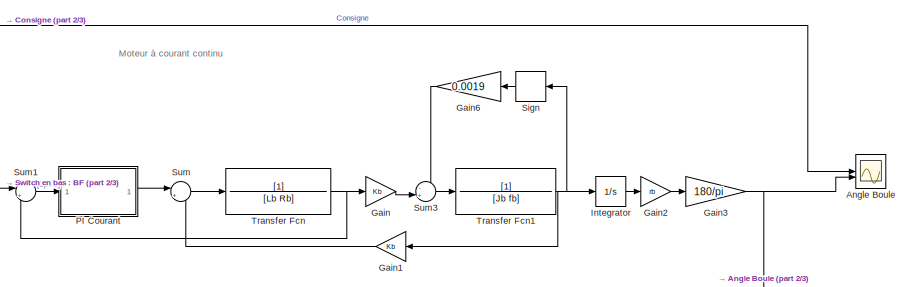
[diagram: root canvas - part 1/3, top right region]
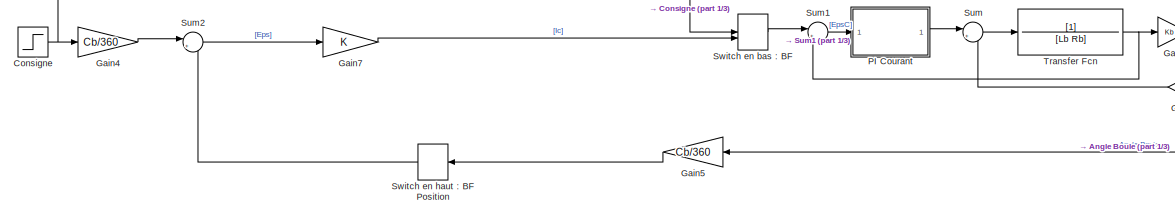
[diagram: root canvas - part 2/3, central region]
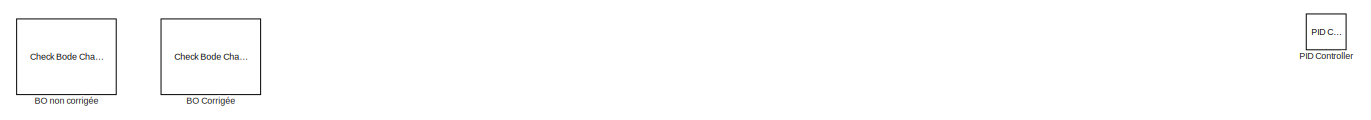
[diagram: root canvas - part 3/3, full width, bottom band]
MODEL slx_27ffd3906b33
KIND model
CONFIG AbsTol = auto
CONFIG EnableMultiTasking = off
CONFIG FixedStep = auto
CONFIG MaxStep = auto
CONFIG MinStep = auto
CONFIG RelTol = 1e-3
CONFIG SampleTimeConstraint = Unconstrained
CONFIG SolverName = VariableStepAuto
CONFIG StartTime = 0.0
CONFIG StopTime = 2
BLOCK [Scope] Angle Boule
  Floating = off
  NumInputPorts = 3
  ScopeSpecificationString = Simulink.scopes.TimeScopeBlockCfg('CurrentConfiguration', extmgr.ConfigurationSet(extmgr.Configuration('Core','General UI',true),extmgr.Configuration('Core','Source UI',true),extmgr.Configuration('Sources','WiredSimulink',true),extmgr.Configuration('Visuals','Time Domain',true,'SerializedDisplays',{struct('MinYLimReal','-149.10855','MaxYLimReal','188.1999','YLabelReal','','MinYLimMag',' 0.00000','...<+1771ch>
BLOCK [Reference] BO Corrigée  REF=slctrlblks/Model Verification/Check Bode 
Characteristics
  InstantiateOnLoad = on
  LibrarySourceBlock = slctrlblks/Linear Analysis Plots/Bode Plot
  SourceBlock = slctrlblks/Model Verification/Check Bode \nCharacteristics
  SourceType = Checks_Bode
BLOCK [Reference] BO non corrigée  REF=slctrlblks/Model Verification/Check Bode 
Characteristics
  InstantiateOnLoad = on
  LibrarySourceBlock = slctrlblks/Linear Analysis Plots/Bode Plot
  SourceBlock = slctrlblks/Model Verification/Check Bode \nCharacteristics
  SourceType = Checks_Bode
BLOCK [Step] Consigne
  After = 10
  SampleTime = 0
  Time = 0
BLOCK [Gain] Gain
  Gain = Kb
BLOCK [Gain] Gain1
  Gain = Kb
  NameLocation = top
BLOCK [Gain] Gain2
  Gain = rb
BLOCK [Gain] Gain3
  Gain = 180/pi
BLOCK [Gain] Gain4
  Gain = Cb/360
BLOCK [Gain] Gain5
  Gain = Cb/360
  NameLocation = top
BLOCK [Gain] Gain6
  Commented = on
  Gain = 0.0019
  NameLocation = top
BLOCK [Gain] Gain7
BLOCK [Integrator] Integrator
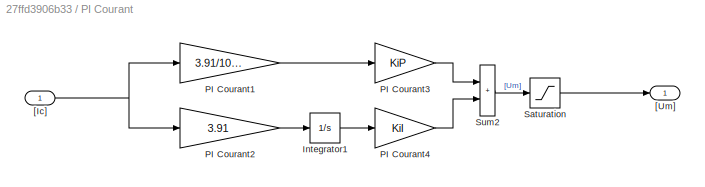
BLOCK [SubSystem] PI Courant
BLOCK [Integrator] PI Courant/Integrator1
BLOCK [Gain] PI Courant/PI Courant1
  Gain = 3.91/1000
BLOCK [Gain] PI Courant/PI Courant2
  Gain = 3.91
BLOCK [Gain] PI Courant/PI Courant3
  Gain = KiP
BLOCK [Gain] PI Courant/PI Courant4
  Gain = KiI
BLOCK [Saturate] PI Courant/Saturation
  LowerLimit = -24
  UpperLimit = 24
BLOCK [Sum] PI Courant/Sum2
  IconShape = rectangular
BLOCK [Inport] PI Courant/[Ic]
BLOCK [Outport] PI Courant/[Um]
BLOCK [Reference] PID Controller  REF=slpidlib/PID Controller
  LibrarySourceBlock = simulink/Continuous/PID Controller
  SourceBlock = slpidlib/PID Controller
  SourceType = PID 1dof
BLOCK [Signum] Sign
  Commented = on
  NameLocation = top
BLOCK [Sum] Sum
  Inputs = |+-
BLOCK [Sum] Sum1
  Inputs = |+-
BLOCK [Sum] Sum2
  Inputs = |+-
BLOCK [Sum] Sum3
  Inputs = -+|
BLOCK [ManualSwitch] Switch en bas : BF
  CurrentSetting = 0
BLOCK [ManualSwitch] Switch en haut : BF Position
  NameLocation = top
BLOCK [TransferFcn] Transfer Fcn
  Denominator = [Lb Rb]
BLOCK [TransferFcn] Transfer Fcn1
  Denominator = [Jb fb]
ANNOTATION (root): Moteur à courant continu
NET Consigne:1 -> Angle Boule:1, Gain4:1, Switch en bas : BF:1
LINE Gain1:1 -> Sum:2
LINE Gain2:1 -> Gain3:1
NET Gain3:1 -> Angle Boule:2, Gain5:1
LINE Gain4:1 -> Sum2:1
LINE Gain5:1 -> Switch en haut : BF Position:1
LINE Gain6:1 -> Sum3:1
LINE Gain7:1 -> Switch en bas : BF:2
LINE Gain:1 -> Sum3:2
LINE Integrator:1 -> Gain2:1
LINE PI Courant/Integrator1:1 -> PI Courant/PI Courant4:1
LINE PI Courant/PI Courant1:1 -> PI Courant/PI Courant3:1
LINE PI Courant/PI Courant2:1 -> PI Courant/Integrator1:1
LINE PI Courant/PI Courant3:1 -> PI Courant/Sum2:1
LINE PI Courant/PI Courant4:1 -> PI Courant/Sum2:2
LINE PI Courant/Saturation:1 -> PI Courant/[Um]:1
LINE PI Courant/Sum2:1 -> PI Courant/Saturation:1
NET PI Courant/[Ic]:1 -> PI Courant/PI Courant1:1, PI Courant/PI Courant2:1
LINE PI Courant:1 -> Sum:1
LINE Sign:1 -> Gain6:1
LINE Sum1:1 -> PI Courant:1
LINE Sum2:1 -> Gain7:1
LINE Sum3:1 -> Transfer Fcn1:1
LINE Sum:1 -> Transfer Fcn:1
LINE Switch en bas : BF:1 -> Sum1:1
LINE Switch en haut : BF Position:1 -> Sum2:2
NET Transfer Fcn1:1 -> Gain1:1, Integrator:1, Sign:1
NET Transfer Fcn:1 -> Gain:1, Sum1:2
note: NET lines group one-source signal fan-out (src -> all destinations, sorted); 1:1 wires keep LINE
